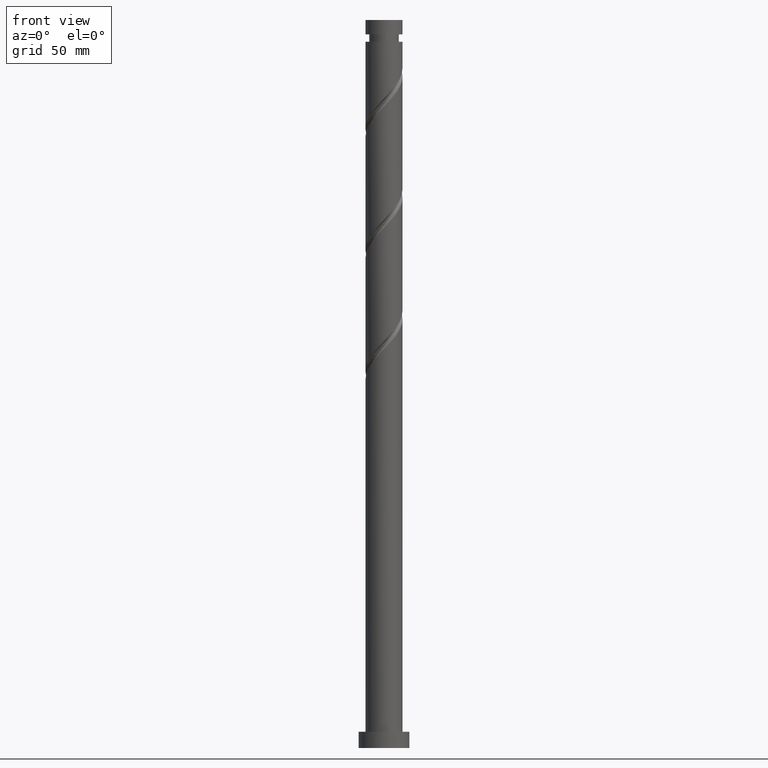
[diagram: clean part render]
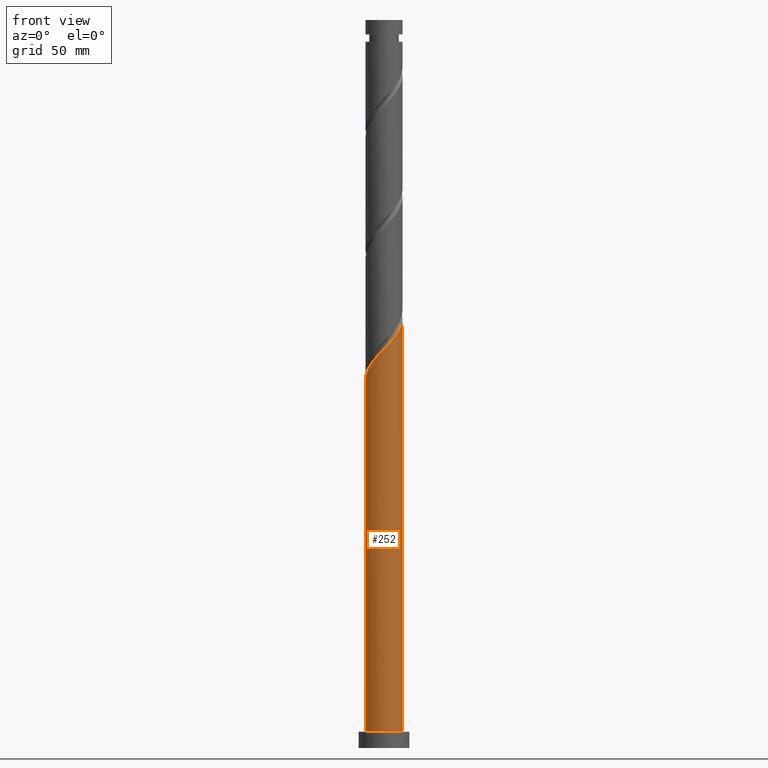
[diagram: same view with one face highlighted and labeled with its STEP entity id]
A machine part, front view. The second image highlights one B-rep face of the part: STEP entity #252.
In plain terms, the highlighted cylindrical surface (edge-blend (fillet) strip) has radius 8 mm, axis along (-0, -0, -1).
Its self-contained STEP definition (entity closure, byte-faithful):
#38 = CARTESIAN_POINT ( 'NONE',  ( 7.532665915805486279, -2.841027358113529022, 182.7817742932561771 ) ) ;
#69 = CARTESIAN_POINT ( 'NONE',  ( -8.000000000000000000, 0.000000000000000000, 315.0000000000000000 ) ) ;
#104 = DIRECTION ( 'NONE',  ( -0.000000000000000000, -0.000000000000000000, -1.000000000000000000 ) ) ;
#122 = EDGE_CURVE ( 'NONE', #193, #710, #1107, .T. ) ;
#132 = CARTESIAN_POINT ( 'NONE',  ( 6.711618193336562399, -4.445972725462998376, 180.9067742932561202 ) ) ;
#177 = CARTESIAN_POINT ( 'NONE',  ( 7.975994315582287442, -1.093621015931131701, 184.6567742932561771 ) ) ;
#193 = VERTEX_POINT ( 'NONE', #352 ) ;
#210 = DIRECTION ( 'NONE',  ( 1.000000000000000000, 0.000000000000000000, 0.000000000000000000 ) ) ;
#241 = CARTESIAN_POINT ( 'NONE',  ( -7.660626944476046418, -2.475335748187467377, 162.1567742932561771 ) ) ;
#250 = CARTESIAN_POINT ( 'NONE',  ( -6.917745010439726450, -4.117923775305157186, 164.0317742932560918 ) ) ;
#252 = ADVANCED_FACE ( 'NONE', ( #1720 ), #978, .T. ) ;
#279 = CARTESIAN_POINT ( 'NONE',  ( -5.136975590527704583, -6.132820051356697277, 166.8442742932561487 ) ) ;
#339 = AXIS2_PLACEMENT_3D ( 'NONE', #1087, #1243, #940 ) ;
#352 = CARTESIAN_POINT ( 'NONE',  ( -8.000000000000012434, 3.432927909951034550E-16, 159.5447572153500744 ) ) ;
#409 = CARTESIAN_POINT ( 'NONE',  ( 4.117923775305156298, -6.917745010439726450, 177.1567742932561487 ) ) ;
#412 = ORIENTED_EDGE ( 'NONE', *, *, #1033, .F. ) ;
#426 = CARTESIAN_POINT ( 'NONE',  ( -7.289185977457886878, -3.296629761746312948, 163.0942742932561771 ) ) ;
#449 = LINE ( 'NONE', #1767, #709 ) ;
#515 = CARTESIAN_POINT ( 'NONE',  ( -8.000000000000000000, 0.000000000000000000, 7.000000000000000000 ) ) ;
#553 = CARTESIAN_POINT ( 'NONE',  ( -0.1924984826887041756, -7.997683685553133692, 172.4692742932561771 ) ) ;
#690 = DIRECTION ( 'NONE',  ( -0.000000000000000000, -0.000000000000000000, -1.000000000000000000 ) ) ;
#709 = VECTOR ( 'NONE', #104, 1000.000000000000000 ) ;
#710 = VERTEX_POINT ( 'NONE', #515 ) ;
#725 = CARTESIAN_POINT ( 'NONE',  ( 7.122142054571023451, -3.643500041788263033, 181.8442742932561202 ) ) ;
#727 = ORIENTED_EDGE ( 'NONE', *, *, #1296, .F. ) ;
#844 = CARTESIAN_POINT ( 'NONE',  ( 2.475335748187466489, -7.660626944476046418, 175.2817742932561771 ) ) ;
#860 = CARTESIAN_POINT ( 'NONE',  ( -6.372861733016070396, -4.835972842340994227, 164.9692742932562055 ) ) ;
#870 = CARTESIAN_POINT ( 'NONE',  ( -7.840000000000014069, -1.591979899370595142, 161.2192742932561202 ) ) ;
#906 = EDGE_CURVE ( 'NONE', #710, #1613, #1483, .T. ) ;
#940 = DIRECTION ( 'NONE',  ( -1.000000000000000000, 0.000000000000000000, 0.000000000000000000 ) ) ;
#978 = CYLINDRICAL_SURFACE ( 'NONE', #339, 8.000000000000000000 ) ;
#988 = CARTESIAN_POINT ( 'NONE',  ( -1.093621015931131257, -7.975994315582287442, 171.5317742932561487 ) ) ;
#997 = CARTESIAN_POINT ( 'NONE',  ( 0.7086240505537224621, -8.019373055523979943, 173.4067742932561771 ) ) ;
#1014 = CARTESIAN_POINT ( 'NONE',  ( 4.835972842340994227, -6.372861733016071284, 178.0942742932561771 ) ) ;
#1016 = AXIS2_PLACEMENT_3D ( 'NONE', #1376, #1540, #210 ) ;
#1033 = EDGE_CURVE ( 'NONE', #193, #1644, #1447, .T. ) ;
#1087 = CARTESIAN_POINT ( 'NONE',  ( 0.000000000000000000, 0.000000000000000000, 315.0000000000000000 ) ) ;
#1107 = LINE ( 'NONE', #69, #1513 ) ;
#1149 = CARTESIAN_POINT ( 'NONE',  ( 3.296629761746312060, -7.289185977457886878, 176.2192742932561487 ) ) ;
#1165 = CARTESIAN_POINT ( 'NONE',  ( -5.827978455592415230, -5.554021909376832156, 165.9067742932561771 ) ) ;
#1243 = DIRECTION ( 'NONE',  ( -0.000000000000000000, -0.000000000000000000, -1.000000000000000000 ) ) ;
#1274 = ORIENTED_EDGE ( 'NONE', *, *, #906, .T. ) ;
#1296 = EDGE_CURVE ( 'NONE', #1644, #1613, #449, .T. ) ;
#1299 = CARTESIAN_POINT ( 'NONE',  ( -1.967324187022329918, -7.754330115693885084, 170.5942742932561487 ) ) ;
#1302 = ORIENTED_EDGE ( 'NONE', *, *, #122, .T. ) ;
#1325 = CARTESIAN_POINT ( 'NONE',  ( 7.754330115693885084, -1.967324187022330140, 183.7192742932561202 ) ) ;
#1376 = CARTESIAN_POINT ( 'NONE',  ( 0.000000000000000000, 0.000000000000000000, 7.000000000000000000 ) ) ;
#1428 = CARTESIAN_POINT ( 'NONE',  ( -3.643500041788262589, -7.122142054571023451, 168.7192742932561771 ) ) ;
#1445 = CARTESIAN_POINT ( 'NONE',  ( -8.000000000000015987, -0.8040302522073555780, 160.3830282943137036 ) ) ;
#1447 =( BOUNDED_CURVE ( )  B_SPLINE_CURVE ( 2, ( #1878, #1445, #870, #241, #426, #250, #860, #1165, #279, #1746, #1428, #1728, #1299, #988, #553, #997, #1754, #844, #1149, #409, #1014, #1610, #1464, #132, #725, #38, #1325, #177, #1656, #1815, #1648 ),
 .UNSPECIFIED., .F., .T. ) 
 B_SPLINE_CURVE_WITH_KNOTS ( ( 3, 2, 2, 2, 2, 2, 2, 2, 2, 2, 2, 2, 2, 2, 2, 3 ),
 ( 0.05453034012992192398, 0.06250000000000000000, 0.07142857142857139685, 0.08035714285714290472, 0.08928571428571430157, 0.09821428571428569843, 0.1071428571428570953, 0.1160714285714286031, 0.1250000000000000000, 0.1339285714285713969, 0.1428571428571429047, 0.1517857142857143016, 0.1607142857142856984, 0.1696428571428570953, 0.1785714285714286031, 0.1795303401299220003 ),
 .UNSPECIFIED. ) 
 CURVE ( )  GEOMETRIC_REPRESENTATION_ITEM ( )  RATIONAL_B_SPLINE_CURVE ( ( 0.9079949616361989717, 0.9039886423360617984, 0.9090909090909286006, 0.9033747362666035841, 0.9090909090909286006, 0.9033747362666035841, 0.9090909090909286006, 0.9033747362666035841, 0.9090909090909286006, 0.9033747362666035841, 0.9090909090909286006, 0.9033747362666035841, 0.9090909090909286006, 0.9033747362666035841, 0.9090909090909286006, 0.9033747362666035841, 0.9090909090909286006, 0.9033747362666035841, 0.9090909090909286006, 0.9033747362666035841, 0.9090909090909286006, 0.9033747362666035841, 0.9090909090909286006, 0.9033747362666035841, 0.9090909090909286006, 0.9033747362666035841, 0.9090909090909286006, 0.9033747362666035841, 0.9090909090909286006, 0.9084770030214703862, 0.9079949616361987497 ) ) 
 REPRESENTATION_ITEM ( '' )  );
#1457 = EDGE_LOOP ( 'NONE', ( #727, #412, #1302, #1274 ) ) ;
#1464 = CARTESIAN_POINT ( 'NONE',  ( 6.132820051356695501, -5.136975590527704583, 179.9692742932561487 ) ) ;
#1483 = CIRCLE ( 'NONE', #1016, 8.000000000000000000 ) ;
#1513 = VECTOR ( 'NONE', #690, 1000.000000000000000 ) ;
#1540 = DIRECTION ( 'NONE',  ( 0.000000000000000000, 0.000000000000000000, 1.000000000000000000 ) ) ;
#1610 = CARTESIAN_POINT ( 'NONE',  ( 5.554021909376832156, -5.827978455592415230, 179.0317742932561771 ) ) ;
#1613 = VERTEX_POINT ( 'NONE', #1736 ) ;
#1643 = CARTESIAN_POINT ( 'NONE',  ( 8.000000000000012434, -1.567206219760254689E-15, 185.7947572153500460 ) ) ;
#1644 = VERTEX_POINT ( 'NONE', #1643 ) ;
#1648 = CARTESIAN_POINT ( 'NONE',  ( 8.000000000000012434, -1.567206219760254689E-15, 185.7947572153500460 ) ) ;
#1656 = CARTESIAN_POINT ( 'NONE',  ( 7.997683685553133692, -0.1924984826887050360, 185.5942742932561487 ) ) ;
#1720 = FACE_OUTER_BOUND ( 'NONE', #1457, .T. ) ;
#1728 = CARTESIAN_POINT ( 'NONE',  ( -2.841027358113529022, -7.532665915805486279, 169.6567742932561771 ) ) ;
#1736 = CARTESIAN_POINT ( 'NONE',  ( 8.000000000000000000, 9.797174393178825657E-16, 7.000000000000000000 ) ) ;
#1746 = CARTESIAN_POINT ( 'NONE',  ( -4.445972725462998376, -6.711618193336562399, 167.7817742932561487 ) ) ;
#1754 = CARTESIAN_POINT ( 'NONE',  ( 1.591979899370594698, -7.840000000000014069, 174.3442742932561487 ) ) ;
#1767 = CARTESIAN_POINT ( 'NONE',  ( 8.000000000000000000, 9.797174393178825657E-16, 315.0000000000000000 ) ) ;
#1815 = CARTESIAN_POINT ( 'NONE',  ( 8.000000000000014211, -0.09626317733113382014, 185.6943945271249561 ) ) ;
#1878 = CARTESIAN_POINT ( 'NONE',  ( -8.000000000000012434, 3.432927909951034550E-16, 159.5447572153500744 ) ) ;